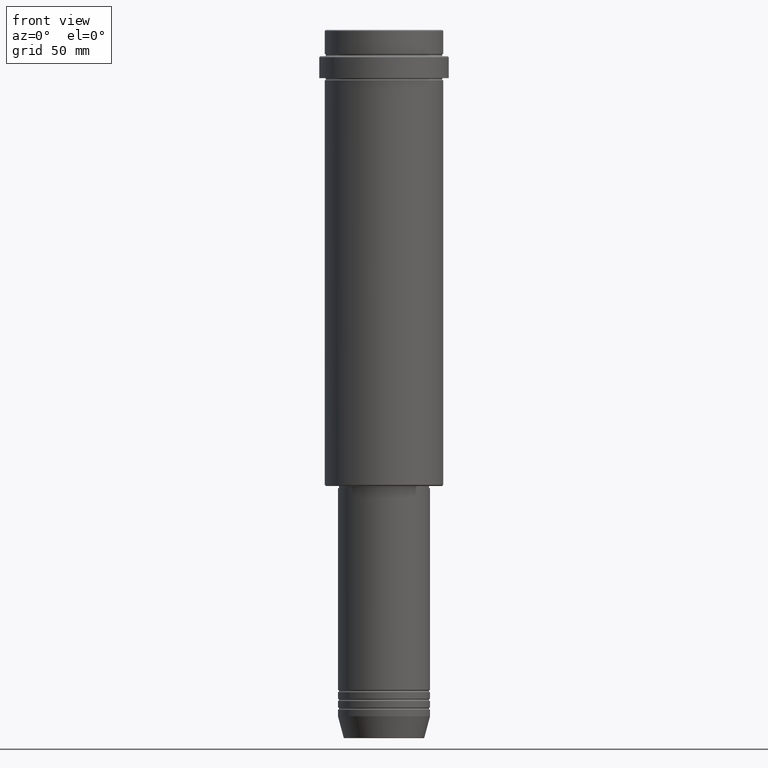
[diagram: clean part render]
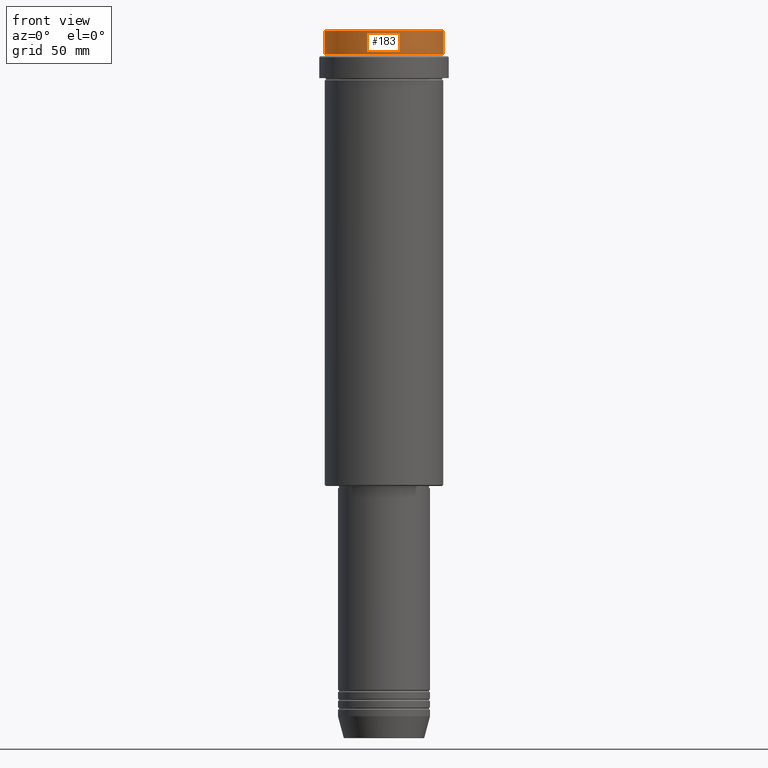
[diagram: same view with one face highlighted and labeled with its STEP entity id]
A machine part, front view. The second image highlights one B-rep face of the part: STEP entity #183.
In plain terms, the highlighted cylindrical surface (partial cylindrical patch) has radius 27 mm, axis along (-0, -0, 1).
Its self-contained STEP definition (entity closure, byte-faithful):
#5 = ORIENTED_EDGE ( 'NONE', *, *, #27, .T. ) ;
#27 = EDGE_CURVE ( 'NONE', #1070, #514, #741, .T. ) ;
#92 = DIRECTION ( 'NONE',  ( 0.000000000000000000, 0.000000000000000000, -1.000000000000000000 ) ) ;
#102 = DIRECTION ( 'NONE',  ( -0.000000000000000000, -0.000000000000000000, 1.000000000000000000 ) ) ;
#127 = CARTESIAN_POINT ( 'NONE',  ( 0.000000000000000000, 0.000000000000000000, 0.000000000000000000 ) ) ;
#183 = ADVANCED_FACE ( 'NONE', ( #985 ), #561, .T. ) ;
#224 = CARTESIAN_POINT ( 'NONE',  ( -27.00000000000000355, 3.306546357697854128E-15, -11.00000000000000178 ) ) ;
#225 = CARTESIAN_POINT ( 'NONE',  ( -27.00000000000000355, 3.306546357697854128E-15, 0.000000000000000000 ) ) ;
#226 = DIRECTION ( 'NONE',  ( 1.000000000000000000, 0.000000000000000000, 0.000000000000000000 ) ) ;
#271 = ORIENTED_EDGE ( 'NONE', *, *, #1297, .T. ) ;
#402 = ORIENTED_EDGE ( 'NONE', *, *, #1315, .F. ) ;
#409 = AXIS2_PLACEMENT_3D ( 'NONE', #1395, #92, #691 ) ;
#453 = DIRECTION ( 'NONE',  ( -0.000000000000000000, -0.000000000000000000, 1.000000000000000000 ) ) ;
#474 = AXIS2_PLACEMENT_3D ( 'NONE', #892, #453, #886 ) ;
#486 = CARTESIAN_POINT ( 'NONE',  ( 27.00000000000000355, 0.000000000000000000, -0.5000000000000350830 ) ) ;
#501 = CIRCLE ( 'NONE', #409, 27.00000000000000355 ) ;
#514 = VERTEX_POINT ( 'NONE', #486 ) ;
#535 = ORIENTED_EDGE ( 'NONE', *, *, #645, .T. ) ;
#547 = VERTEX_POINT ( 'NONE', #1311 ) ;
#561 = CYLINDRICAL_SURFACE ( 'NONE', #1094, 27.00000000000000355 ) ;
#588 = CIRCLE ( 'NONE', #474, 27.00000000000000355 ) ;
#644 = DIRECTION ( 'NONE',  ( -0.000000000000000000, -0.000000000000000000, 1.000000000000000000 ) ) ;
#645 = EDGE_CURVE ( 'NONE', #1010, #1070, #588, .T. ) ;
#686 = DIRECTION ( 'NONE',  ( -0.000000000000000000, -0.000000000000000000, 1.000000000000000000 ) ) ;
#691 = DIRECTION ( 'NONE',  ( 1.000000000000000000, 0.000000000000000000, 0.000000000000000000 ) ) ;
#734 = EDGE_LOOP ( 'NONE', ( #402, #535, #5, #271 ) ) ;
#741 = LINE ( 'NONE', #1177, #1230 ) ;
#876 = LINE ( 'NONE', #225, #995 ) ;
#886 = DIRECTION ( 'NONE',  ( 1.000000000000000000, 0.000000000000000000, 0.000000000000000000 ) ) ;
#889 = CARTESIAN_POINT ( 'NONE',  ( 27.00000000000000355, 0.000000000000000000, -11.00000000000000178 ) ) ;
#892 = CARTESIAN_POINT ( 'NONE',  ( 0.000000000000000000, 0.000000000000000000, -11.00000000000000178 ) ) ;
#985 = FACE_OUTER_BOUND ( 'NONE', #734, .T. ) ;
#995 = VECTOR ( 'NONE', #644, 1000.000000000000000 ) ;
#1010 = VERTEX_POINT ( 'NONE', #224 ) ;
#1070 = VERTEX_POINT ( 'NONE', #889 ) ;
#1094 = AXIS2_PLACEMENT_3D ( 'NONE', #127, #686, #226 ) ;
#1177 = CARTESIAN_POINT ( 'NONE',  ( 27.00000000000000355, 0.000000000000000000, 0.000000000000000000 ) ) ;
#1230 = VECTOR ( 'NONE', #102, 1000.000000000000000 ) ;
#1297 = EDGE_CURVE ( 'NONE', #514, #547, #501, .T. ) ;
#1311 = CARTESIAN_POINT ( 'NONE',  ( -27.00000000000000355, 3.306546357697854128E-15, -0.5000000000000350830 ) ) ;
#1315 = EDGE_CURVE ( 'NONE', #1010, #547, #876, .T. ) ;
#1395 = CARTESIAN_POINT ( 'NONE',  ( 0.000000000000000000, 0.000000000000000000, -0.5000000000000350830 ) ) ;